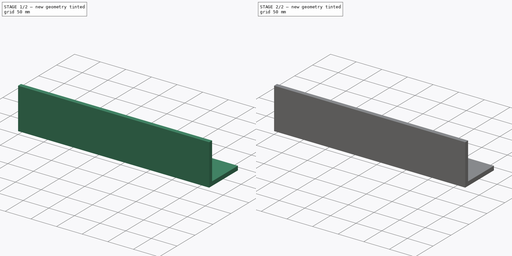
[diagram: build sequence overview — one tinted view per stage of 2, left to right]
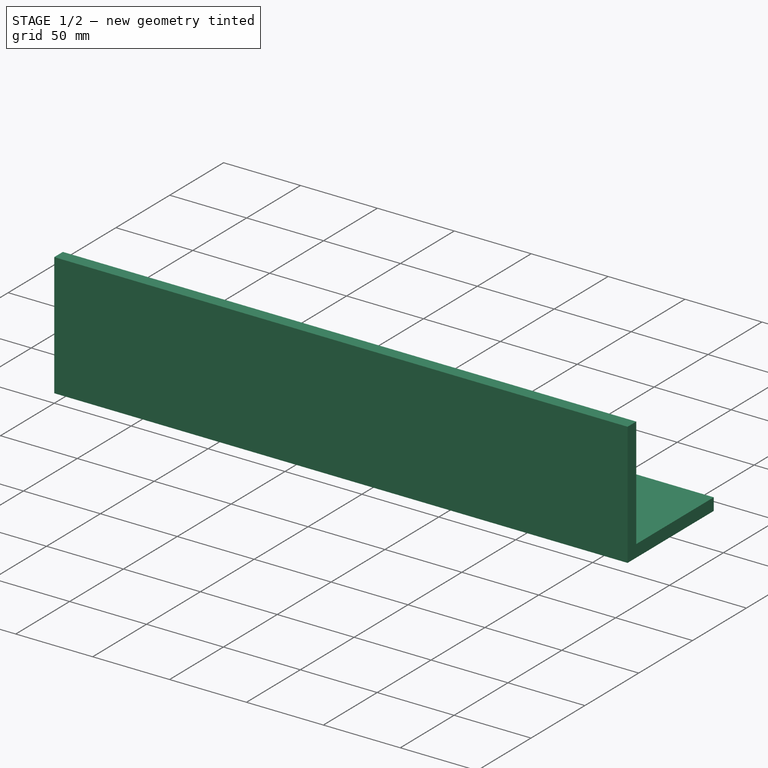
[diagram: stage 1 of 2 — iso view after this stage's code; geometry added in this stage tinted green]
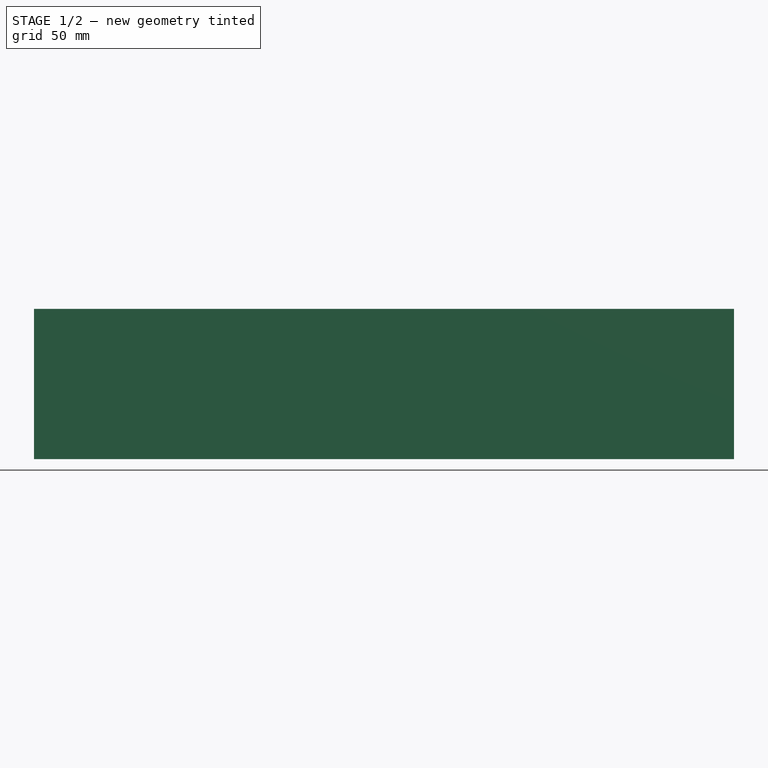
[diagram: stage 1 of 2 — front view after this stage's code; geometry added in this stage tinted green]
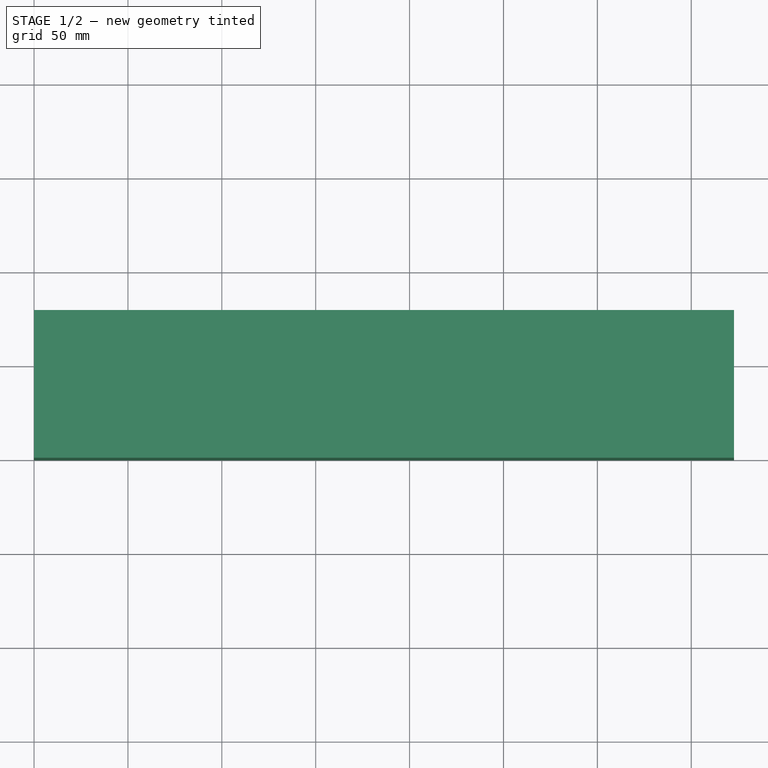
[diagram: stage 1 of 2 — top view after this stage's code; geometry added in this stage tinted green]
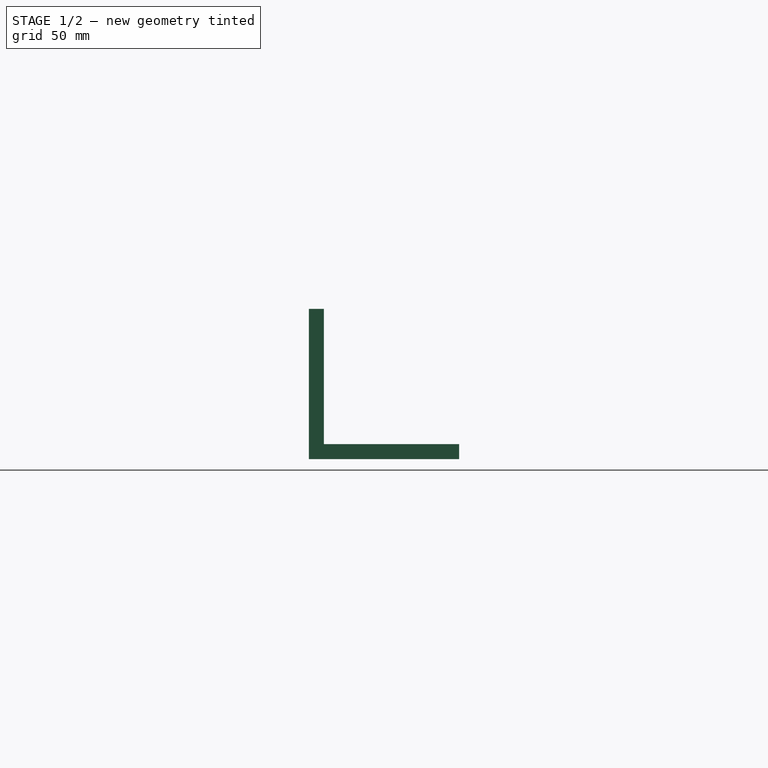
[diagram: stage 1 of 2 — right view after this stage's code; geometry added in this stage tinted green]
FCSTD DOCUMENT  (FreeCAD 0.20R29177 (Git))
Label: Frame_Bracket_Middle
License: All rights reserved
LicenseURL: http://en.wikipedia.org/wiki/All_rights_reserved
objects: Sketcher::SketchObject×2, Spreadsheet::Sheet×1, PartDesign::Pad×1, PartDesign::Pocket×1, PartDesign::Body×1
note: 7 computed .brp shape members not serialized (recipe doc carries the construction recipe); baked Part::Feature solids carry a one-line shape summary decoded from their .brp
EXTERNAL_REF file=../../Master_of_Puppets.FCStd obj=Alternator
EXTERNAL_REF file=../../Master_of_Puppets.FCStd obj=Spreadsheet

FEATURE [Spreadsheet::Sheet] Spreadsheet
  cells = A1=Inputs; A2=MetalThicknessL; B2(MetalThicknessL)==Master_of_Puppets#Spreadsheet.MetalThicknessL; A3=MetalLengthL; B3(MetalLengthL)==Master_of_Puppets#Spreadsheet.MetalLengthL; A4=HolesRadius; B4(HolesRadius)==Master_of_Puppets#Alternator.HolesRadius; A5=StatorHolesCircumradius; B5(StatorHolesCircumradius)==Master_of_Puppets#Alternator.StatorHolesCircumradius; A6=CC; B6(CC)==Master_of_Puppets#Alternator.CC; A7=Placement; A8=X; B8(X)==-MetalLengthL; A9=Y; B9(Y)==MetalLengthL
FEATURE [Sketcher::SketchObject] Sketch
  FullyConstrained = true
  MapMode = 5
  Placement = pos=(0,0,0) rot=(0.57735,0.57735,0.57735;2.0944rad)
  Support = -> [YZ_Plane]
  expr: Constraints[15] = Spreadsheet.MetalLengthL
  expr: Constraints[16] = Spreadsheet.MetalThicknessL
  sketch-geometry (6):
    g0: LineSegment StartX=0 StartY=0 StartZ=0 EndX=0 EndY=80 EndZ=0
    g1: LineSegment StartX=0 StartY=80 StartZ=0 EndX=8 EndY=80 EndZ=0
    g2: LineSegment StartX=8 StartY=80 StartZ=0 EndX=8 EndY=8 EndZ=0
    g3: LineSegment StartX=8 StartY=8 StartZ=0 EndX=80 EndY=8 EndZ=0
    g4: LineSegment StartX=80 StartY=8 StartZ=0 EndX=80 EndY=0 EndZ=0
    g5: LineSegment StartX=80 StartY=0 StartZ=0 EndX=0 EndY=0 EndZ=0
  constraints (17):
    c: Coincident(g-1,g0)
    c: PointOnObject(g0,g-2)
    c: Coincident(g0,g1)
    c: Horizontal(g1)
    c: Coincident(g1,g2)
    c: Vertical(g2)
    c: Coincident(g2,g3)
    c: Horizontal(g3)
    c: Coincident(g3,g4)
    c: Vertical(g4)
    c: Coincident(g4,g5)
    c: Coincident(g5,g0)
    c: Horizontal(g5)
    c: Equal(g1,g4)
    c: Equal(g5,g0)
    c: DistanceX(g5,g5) = 80
    c: DistanceX(g1,g1) = 8
FEATURE [PartDesign::Pad] Pad
  AllowMultiFace = false
  Direction = (1,-1.129e-13,1.129e-13)
  Length = 372.752
  Length2 = 100
  Placement = pos=(0,0,0) rot=(0.57735,0.57735,0.57735;2.0944rad)
  Profile = -> Sketch
  Type = 0
  expr: Length = Spreadsheet.CC
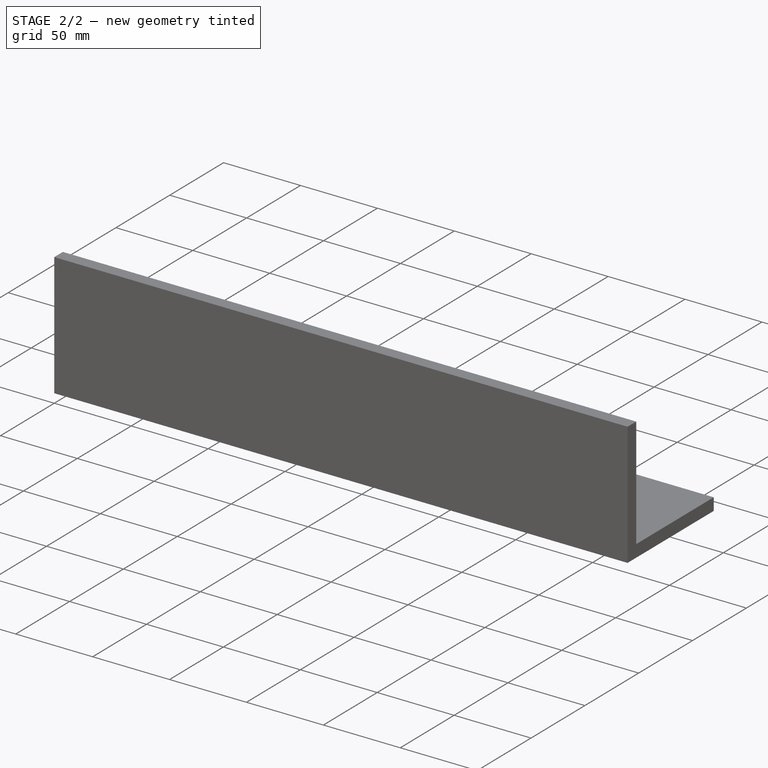
[diagram: stage 2 of 2 — iso view after this stage's code; geometry added in this stage tinted green]
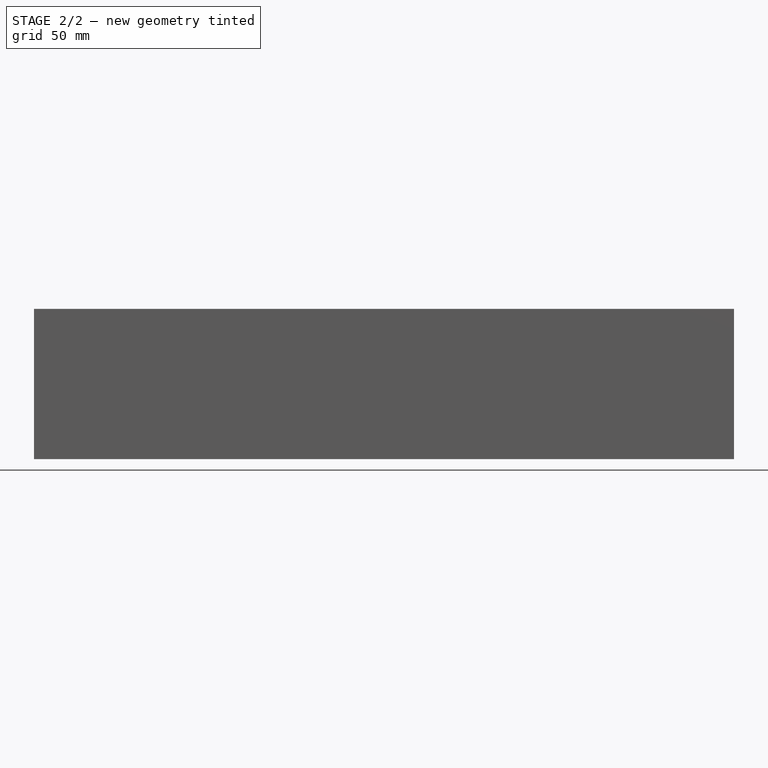
[diagram: stage 2 of 2 — front view after this stage's code; geometry added in this stage tinted green]
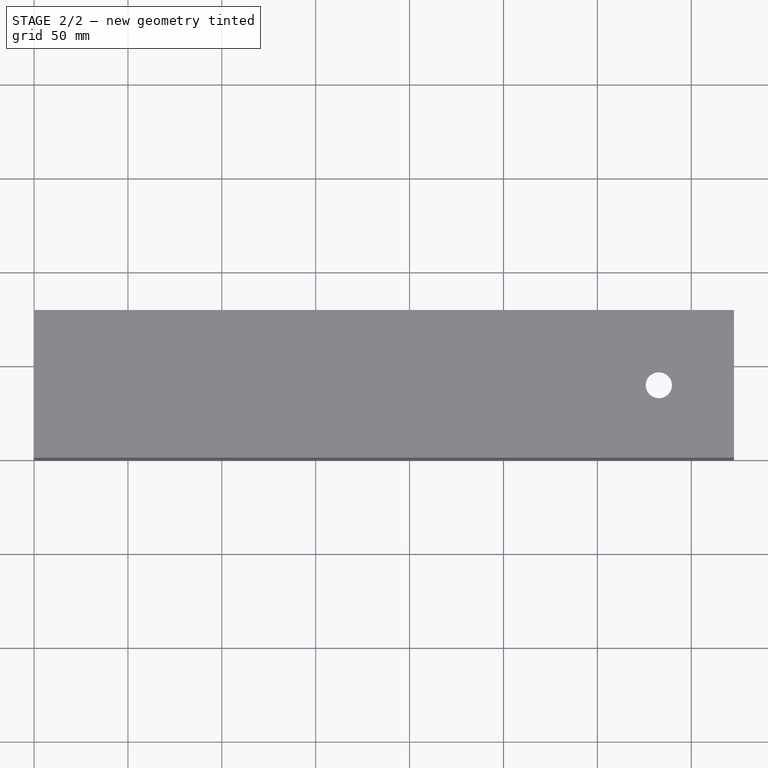
[diagram: stage 2 of 2 — top view after this stage's code; geometry added in this stage tinted green]
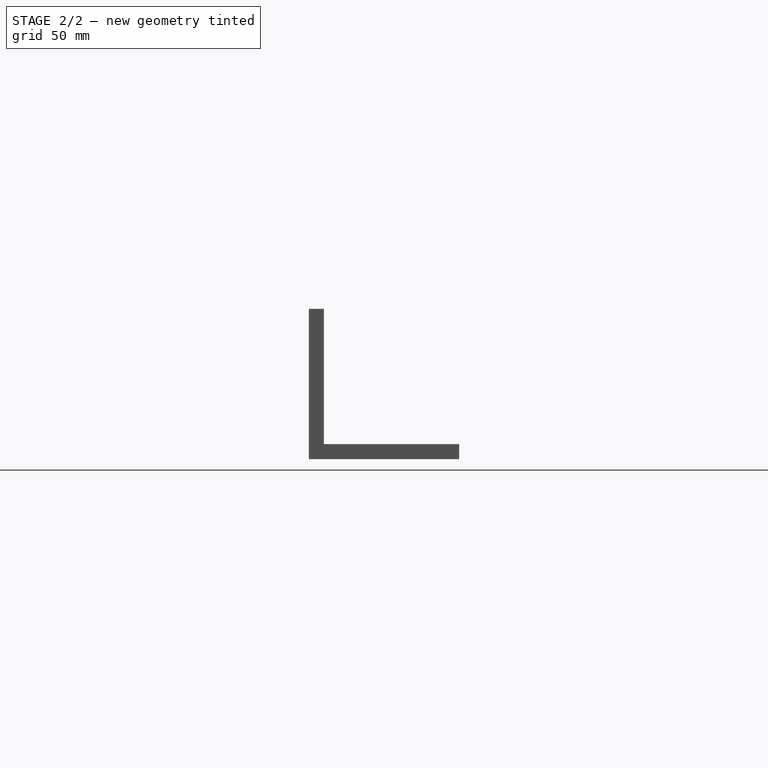
[diagram: stage 2 of 2 — right view after this stage's code; geometry added in this stage tinted green]
FEATURE [Sketcher::SketchObject] Sketch001
  ExternalGeometry = -> [Pad]
  FullyConstrained = true
  MapMode = 5
  Placement = pos=(0,0,0) rot=(0.707107,0.707107,0;3.14159rad)
  Support = -> [Pad]
  expr: Constraints[1] = Spreadsheet.HolesRadius
  expr: Constraints[2] = Spreadsheet.StatorHolesCircumradius
  expr: Constraints[3] = Spreadsheet.MetalLengthL
  expr: Constraints[4] = 0.5 * Spreadsheet.MetalLengthL
  expr: Constraints[5] = 0.5 * Spreadsheet.MetalLengthL
  sketch-geometry (2):
    g0: Circle CenterX=40 CenterY=-80 CenterZ=0 NormalX=0 NormalY=0 NormalZ=1 AngleXU=0 Radius=412.752
    g1: Circle CenterX=40 CenterY=332.752 CenterZ=0 NormalX=0 NormalY=0 NormalZ=1 AngleXU=0 Radius=7
  constraints (6):
    c: PointOnObject(g1,g0)
    c: Radius(g1) = 7
    c: Radius(g0) = 412.752
    c: Distance(g0,g-3) = 80
    c: Distance(g0,g-2) = 40
    c: DistanceX(g-2,g1) = 40
FEATURE [PartDesign::Pocket] Pocket
  AllowMultiFace = false
  BaseFeature = -> Pad
  Direction = (-1.13e-13,1.129e-13,1)
  Length = 5
  Length2 = 100
  Placement = pos=(0,0,0) rot=(0.57735,0.57735,0.57735;2.0944rad)
  Profile = -> Sketch001
  Type = 1
FEATURE [PartDesign::Body] Body  label="Frame_Bracket_Middle"
  Group = -> [Sketch,Pad,Sketch001,Pocket]
  Origin = -> Origin
  Placement = pos=(-80,80,0) rot=(0,0.707107,-0.707107;3.14159rad)
  Tip = -> Pocket
  expr: .Placement.Base.x = Spreadsheet.X
  expr: .Placement.Base.y = Spreadsheet.Y
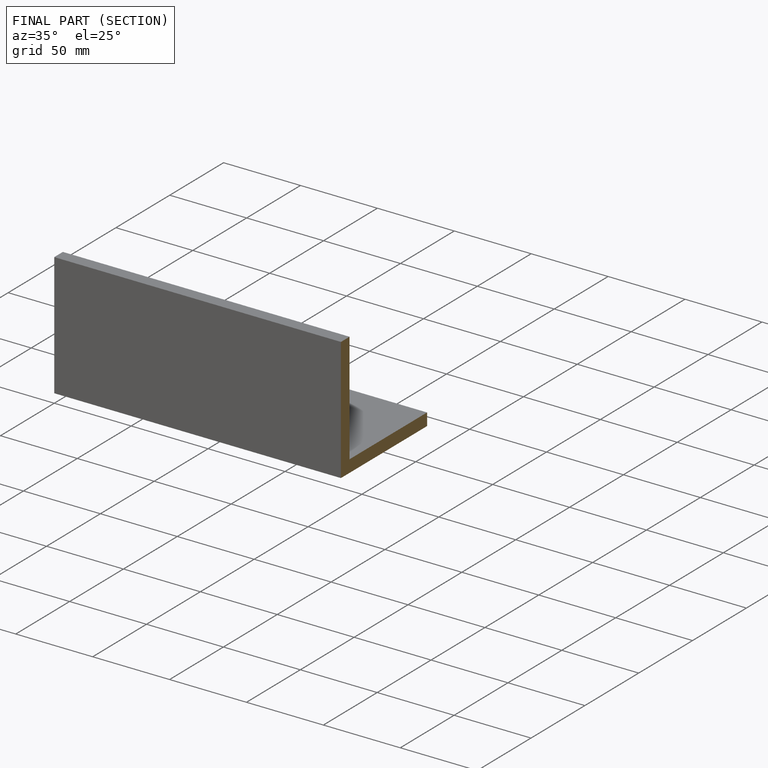
[diagram: finished part — half-section view (interior)]
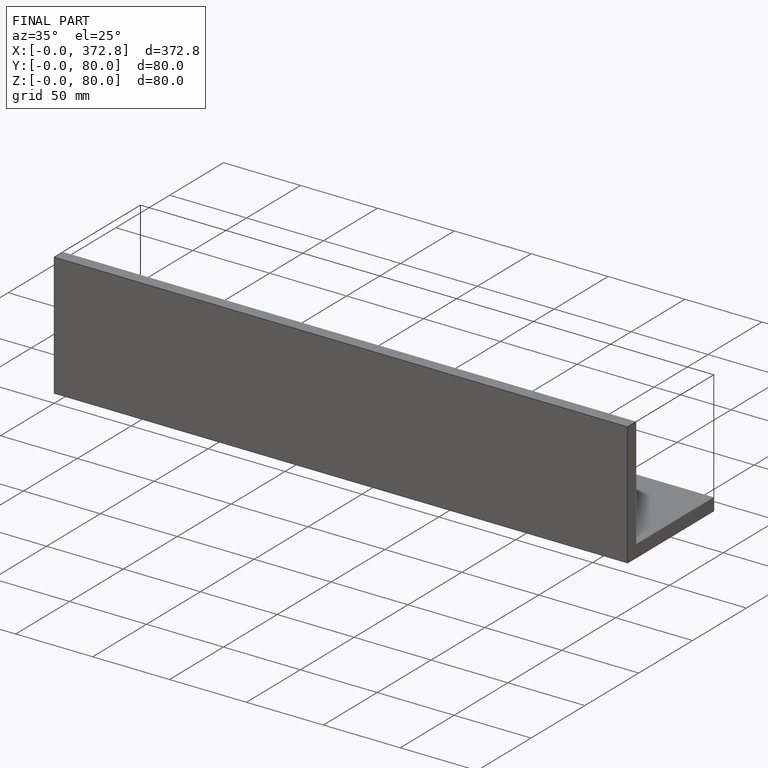
[diagram: finished part — iso view with bounding-box wireframe]
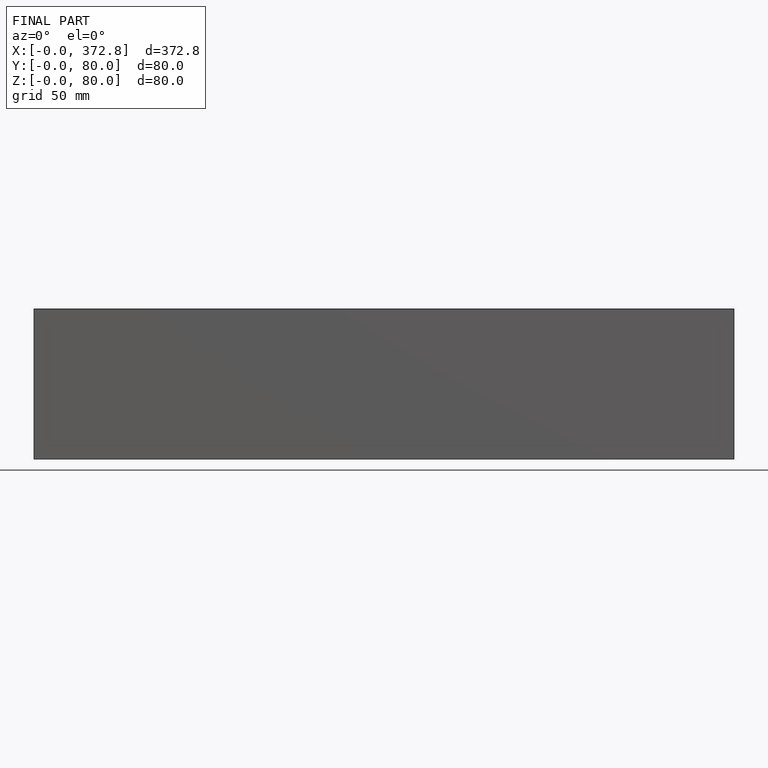
[diagram: finished part — front view with bounding-box wireframe]
